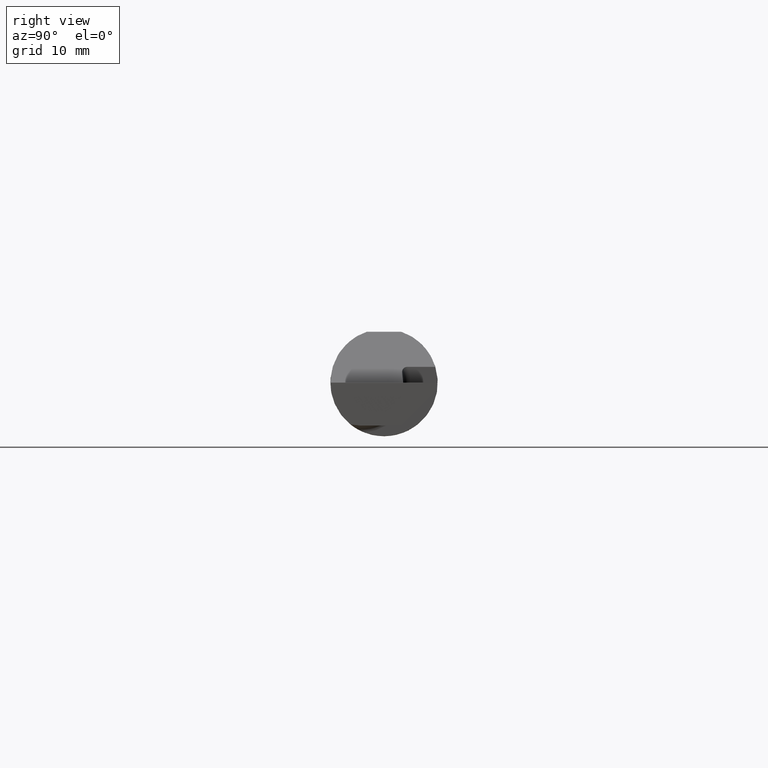
[diagram: clean part render]
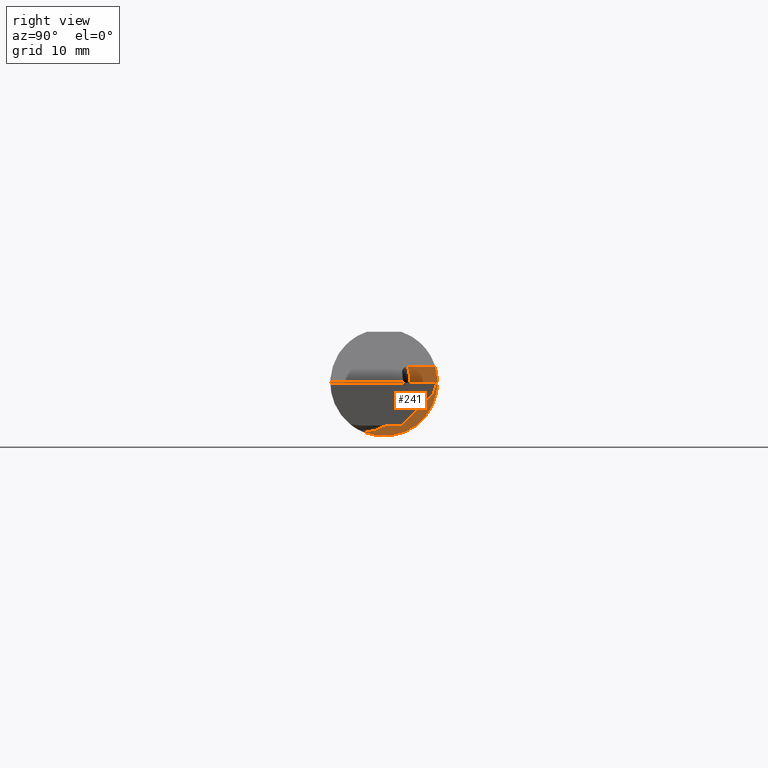
[diagram: same view with one face highlighted and labeled with its STEP entity id]
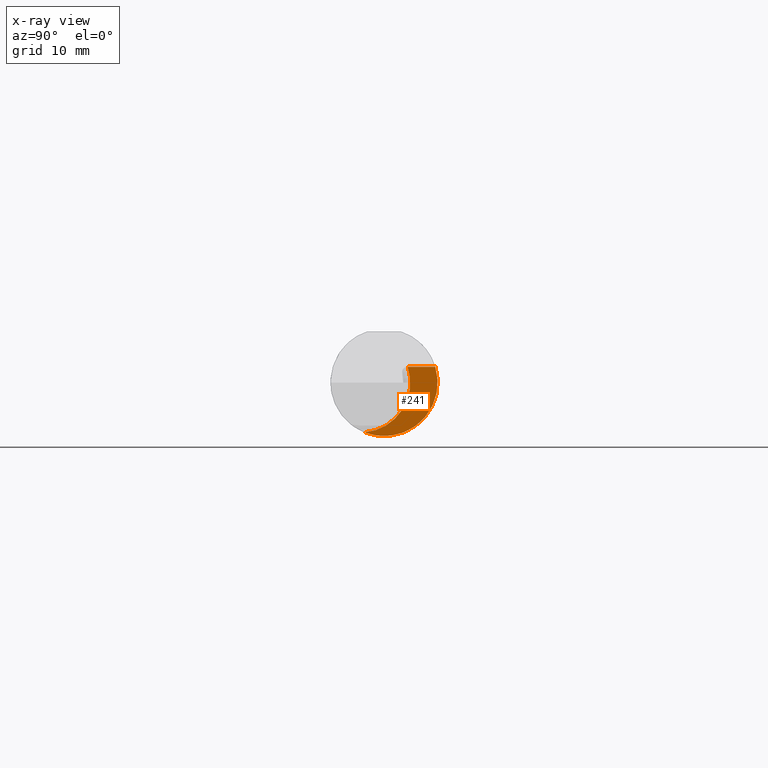
[diagram: x-ray of the same camera — body ghosted, the highlighted face saturated]
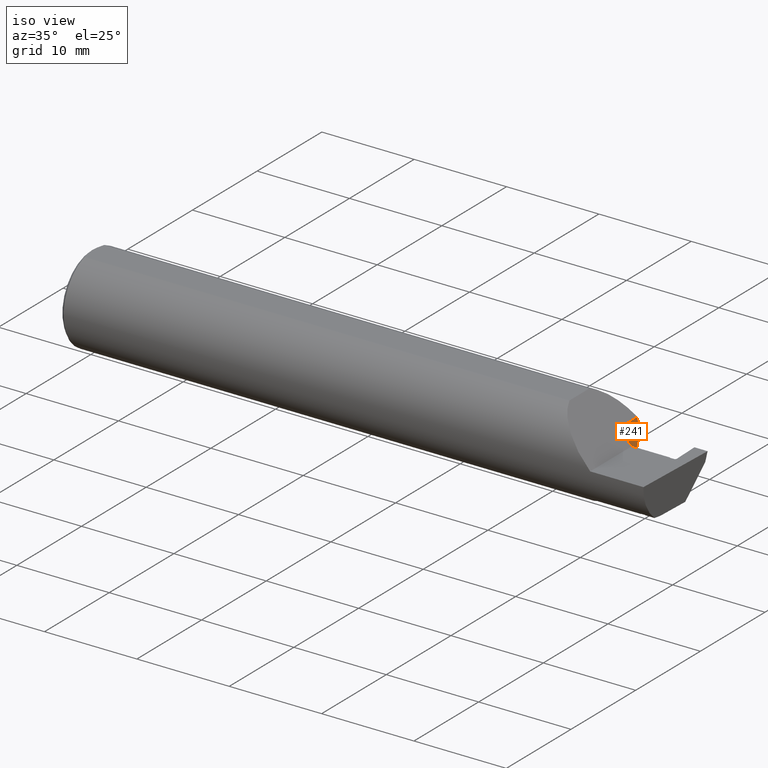
[diagram: same view with one face highlighted and labeled with its STEP entity id]
A machine part, right view. The second image highlights one B-rep face of the part: STEP entity #241.
The next image is the same camera in x-ray: the body ghosted, the highlighted face saturated — about 0% of this face is hidden behind the body in this view.
A second angle (iso view) of the same face is appended — the face is thin or edge-on in the first view.
In plain terms, the highlighted planar face has unit normal (1, 0, 0).
Its self-contained STEP definition (entity closure, byte-faithful):
#12 = EDGE_LOOP ( 'NONE', ( #410, #221, #333 ) ) ;
#13 = DIRECTION ( 'NONE',  ( 0.000000000000000000, 0.000000000000000000, 1.000000000000000000 ) ) ;
#33 = DIRECTION ( 'NONE',  ( 1.000000000000000000, 0.000000000000000000, 0.000000000000000000 ) ) ;
#37 = VERTEX_POINT ( 'NONE', #380 ) ;
#39 = DIRECTION ( 'NONE',  ( 0.000000000000000000, 0.000000000000000000, -1.000000000000000000 ) ) ;
#65 = VECTOR ( 'NONE', #699, 39.37007874015748143 ) ;
#175 = CARTESIAN_POINT ( 'NONE',  ( 2.205000000000000071, 0.000000000000000000, 0.000000000000000000 ) ) ;
#188 = AXIS2_PLACEMENT_3D ( 'NONE', #175, #33, #39 ) ;
#213 = EDGE_CURVE ( 'NONE', #344, #37, #785, .T. ) ;
#221 = ORIENTED_EDGE ( 'NONE', *, *, #759, .T. ) ;
#241 = ADVANCED_FACE ( 'NONE', ( #331 ), #672, .T. ) ;
#266 = AXIS2_PLACEMENT_3D ( 'NONE', #372, #658, #13 ) ;
#293 = CARTESIAN_POINT ( 'NONE',  ( 2.205000000000000071, 0.08278247725836135329, 0.05500000000000044437 ) ) ;
#331 = FACE_OUTER_BOUND ( 'NONE', #12, .T. ) ;
#333 = ORIENTED_EDGE ( 'NONE', *, *, #674, .T. ) ;
#344 = VERTEX_POINT ( 'NONE', #695 ) ;
#372 = CARTESIAN_POINT ( 'NONE',  ( 2.205000000000000071, -0.08334999999999996578, 0.000000000000000000 ) ) ;
#380 = CARTESIAN_POINT ( 'NONE',  ( 2.205000000000000071, 0.1790950097015547027, 0.05500000000000044437 ) ) ;
#410 = ORIENTED_EDGE ( 'NONE', *, *, #213, .T. ) ;
#416 = CARTESIAN_POINT ( 'NONE',  ( 2.205000000000000071, -0.2000000000000000111, 0.05500000000000044437 ) ) ;
#473 = CIRCLE ( 'NONE', #266, 0.1749999999999999889 ) ;
#512 = VERTEX_POINT ( 'NONE', #293 ) ;
#596 = CARTESIAN_POINT ( 'NONE',  ( 2.205000000000000071, 0.2666500000000000536, 0.000000000000000000 ) ) ;
#614 = DIRECTION ( 'NONE',  ( 1.000000000000000000, 0.000000000000000000, 0.000000000000000000 ) ) ;
#658 = DIRECTION ( 'NONE',  ( -1.000000000000000000, -0.000000000000000000, -0.000000000000000000 ) ) ;
#672 = PLANE ( 'NONE',  #740 ) ;
#674 = EDGE_CURVE ( 'NONE', #512, #344, #473, .T. ) ;
#676 = DIRECTION ( 'NONE',  ( 0.000000000000000000, 0.000000000000000000, -1.000000000000000000 ) ) ;
#695 = CARTESIAN_POINT ( 'NONE',  ( 2.205000000000000071, -0.06851976604679065053, -0.1743704796142198643 ) ) ;
#699 = DIRECTION ( 'NONE',  ( 0.000000000000000000, -1.000000000000000000, 0.000000000000000000 ) ) ;
#740 = AXIS2_PLACEMENT_3D ( 'NONE', #596, #614, #676 ) ;
#759 = EDGE_CURVE ( 'NONE', #37, #512, #770, .T. ) ;
#770 = LINE ( 'NONE', #416, #65 ) ;
#785 = CIRCLE ( 'NONE', #188, 0.1873499999999999888 ) ;